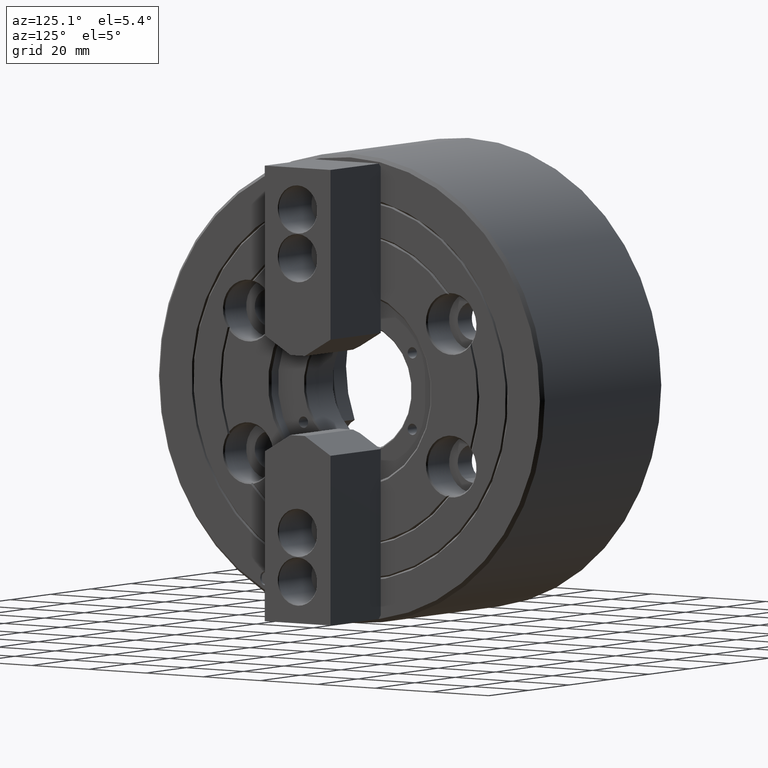
[diagram: clean part render]
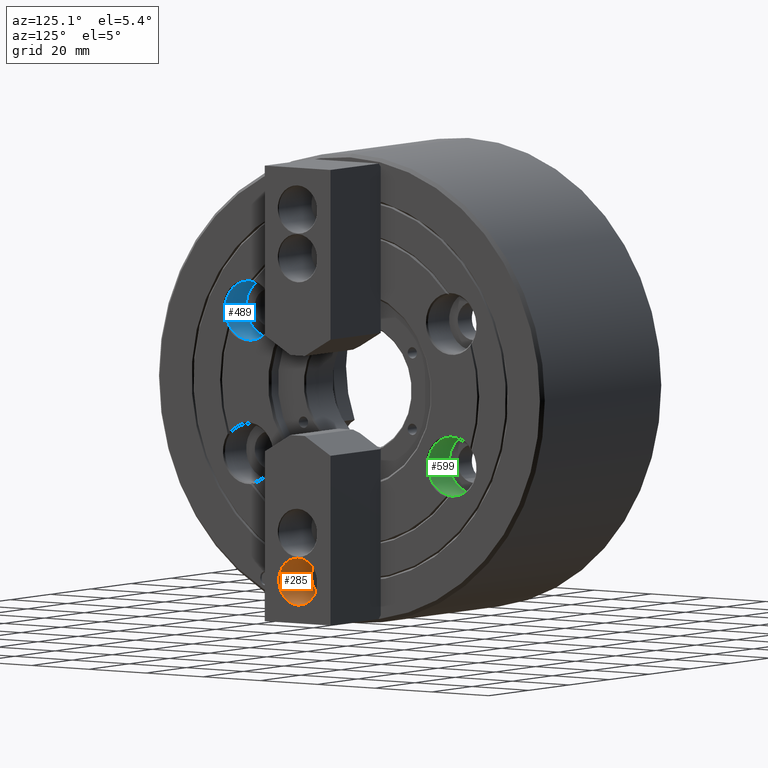
[diagram: same view with three faces highlighted in distinct colors, each labeled with its STEP entity id]
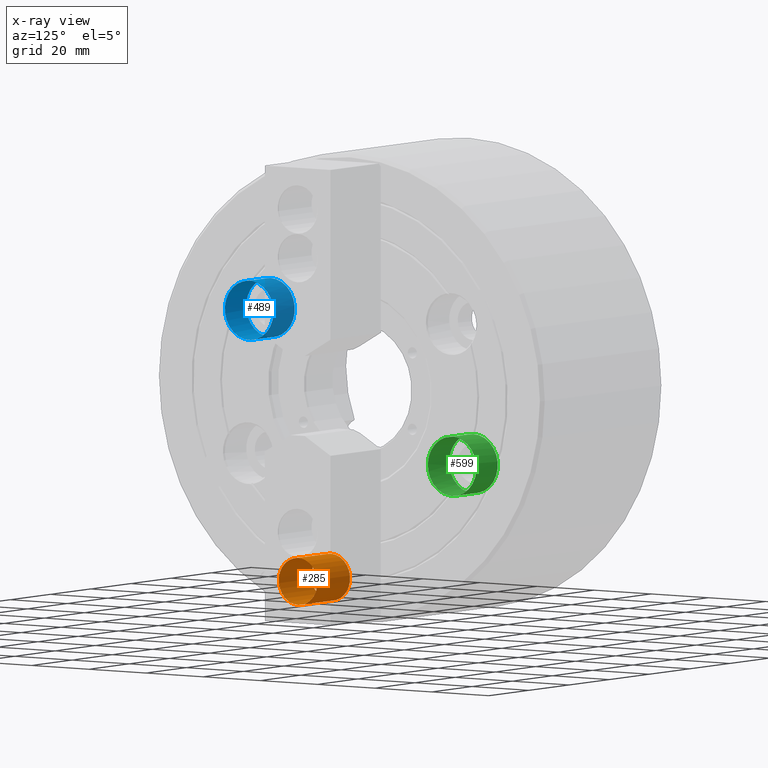
[diagram: x-ray of the same camera — body ghosted, the three highlighted faces saturated]
A machine part, auxiliary view with three faces highlighted in distinct colors.
The next image is the same camera in x-ray (body ghosted, the three faces saturated) — at least one of them is partly hidden behind the body in this view.
Their STEP definitions:

[orange] entity #285 — the highlighted cylindrical surface (bore or boss wall) has radius 6.75 mm, axis along (1, 0, 0).
#285 = ADVANCED_FACE( '', ( #735, #736 ), #737, .F. );
#735 = FACE_OUTER_BOUND( '', #1412, .T. );
#736 = FACE_OUTER_BOUND( '', #1413, .T. );
#737 = CYLINDRICAL_SURFACE( '', #1414, 6.75000000000000 );
#1412 = EDGE_LOOP( '', ( #2224 ) );
#1413 = EDGE_LOOP( '', ( #2225 ) );
#1414 = AXIS2_PLACEMENT_3D( '', #2226, #2227, #2228 );
#2224 = ORIENTED_EDGE( '', *, *, #4097, .T. );
#2225 = ORIENTED_EDGE( '', *, *, #4098, .F. );
#2226 = CARTESIAN_POINT( '', ( 56.0014536930733, -6.55164399294972E-015, -53.5000000000000 ) );
#2227 = DIRECTION( '', ( 1.00000000000000, 1.57214084700305E-048, 2.56758564431078E-032 ) );
#2228 = DIRECTION( '', ( -2.56758564431078E-032, 1.22460635382238E-016, 1.00000000000000 ) );
#4097 = EDGE_CURVE( '', #4807, #4807, #4808, .T. );
#4098 = EDGE_CURVE( '', #4809, #4809, #4810, .T. );
#4807 = VERTEX_POINT( '', #5913 );
#4808 = CIRCLE( '', #5914, 6.75000000000000 );
#4809 = VERTEX_POINT( '', #5915 );
#4810 = CIRCLE( '', #5916, 6.75000000000000 );
#5913 = CARTESIAN_POINT( '', ( 55.8014536930733, -5.72503470411962E-015, -46.7500000000000 ) );
#5914 = AXIS2_PLACEMENT_3D( '', #7763, #7764, #7765 );
#5915 = CARTESIAN_POINT( '', ( 39.5014536930733, -5.72503470411962E-015, -46.7500000000000 ) );
#5916 = AXIS2_PLACEMENT_3D( '', #7766, #7767, #7768 );
#7763 = CARTESIAN_POINT( '', ( 55.8014536930733, -6.55164399294972E-015, -53.5000000000000 ) );
#7764 = DIRECTION( '', ( 1.00000000000000, 1.57214084700305E-048, 2.56758564431078E-032 ) );
#7765 = DIRECTION( '', ( -2.56758564431078E-032, 1.22460635382238E-016, 1.00000000000000 ) );
#7766 = CARTESIAN_POINT( '', ( 39.5014536930733, -6.55164399294972E-015, -53.5000000000000 ) );
#7767 = DIRECTION( '', ( 1.00000000000000, 1.57214084700305E-048, 2.56758564431078E-032 ) );
#7768 = DIRECTION( '', ( -2.56758564431078E-032, 1.22460635382238E-016, 1.00000000000000 ) );

[blue] entity #489 — the highlighted cylindrical surface (bore or boss wall) has radius 8.5 mm, axis along (1, 0, 0).
#489 = ADVANCED_FACE( '', ( #1081, #1082 ), #1083, .F. );
#1081 = FACE_OUTER_BOUND( '', #1766, .T. );
#1082 = FACE_OUTER_BOUND( '', #1767, .T. );
#1083 = CYLINDRICAL_SURFACE( '', #1768, 8.50000000000000 );
#1766 = EDGE_LOOP( '', ( #3297, #3298 ) );
#1767 = EDGE_LOOP( '', ( #3299 ) );
#1768 = AXIS2_PLACEMENT_3D( '', #3300, #3301, #3302 );
#3297 = ORIENTED_EDGE( '', *, *, #4259, .T. );
#3298 = ORIENTED_EDGE( '', *, *, #4296, .T. );
#3299 = ORIENTED_EDGE( '', *, *, #4501, .F. );
#3300 = CARTESIAN_POINT( '', ( 30.0014536930733, -35.5070415551620, 20.5000000000000 ) );
#3301 = DIRECTION( '', ( 1.00000000000000, 5.38323120922244E-064, 1.28379282215539E-032 ) );
#3302 = DIRECTION( '', ( -1.28379282215539E-032, 1.22460635382238E-016, 1.00000000000000 ) );
#4259 = EDGE_CURVE( '', #5035, #5067, #5070, .T. );
#4296 = EDGE_CURVE( '', #5067, #5035, #5125, .T. );
#4501 = EDGE_CURVE( '', #5415, #5415, #5416, .T. );
#5035 = VERTEX_POINT( '', #6432 );
#5067 = VERTEX_POINT( '', #6548 );
#5070 = CIRCLE( '', #6554, 8.50000000000000 );
#5125 = CIRCLE( '', #6636, 8.50000000000000 );
#5415 = VERTEX_POINT( '', #7359 );
#5416 = CIRCLE( '', #7360, 8.50000000000000 );
#6432 = CARTESIAN_POINT( '', ( 29.6014536930733, -34.4634011576316, 28.9356869738417 ) );
#6548 = CARTESIAN_POINT( '', ( 29.6014536930733, -42.2907405741172, 15.3783374164022 ) );
#6554 = AXIS2_PLACEMENT_3D( '', #7888, #7889, #7890 );
#6636 = AXIS2_PLACEMENT_3D( '', #7922, #7923, #7924 );
#7359 = CARTESIAN_POINT( '', ( 19.0014536930733, -35.5070415551620, 29.0000000000000 ) );
#7360 = AXIS2_PLACEMENT_3D( '', #8075, #8076, #8077 );
#7888 = CARTESIAN_POINT( '', ( 29.6014536930733, -35.5070415551620, 20.5000000000000 ) );
#7889 = DIRECTION( '', ( 1.00000000000000, 1.57214084700305E-048, 2.56758564431078E-032 ) );
#7890 = DIRECTION( '', ( -2.56758564431078E-032, 1.22460635382238E-016, 1.00000000000000 ) );
#7922 = CARTESIAN_POINT( '', ( 29.6014536930733, -35.5070415551620, 20.5000000000000 ) );
#7923 = DIRECTION( '', ( 1.00000000000000, 1.57214084700305E-048, 2.56758564431078E-032 ) );
#7924 = DIRECTION( '', ( -2.56758564431078E-032, 1.22460635382238E-016, 1.00000000000000 ) );
#8075 = CARTESIAN_POINT( '', ( 19.0014536930733, -35.5070415551620, 20.5000000000000 ) );
#8076 = DIRECTION( '', ( 1.00000000000000, 5.38323120922244E-064, 1.28379282215539E-032 ) );
#8077 = DIRECTION( '', ( -1.28379282215539E-032, 1.22460635382238E-016, 1.00000000000000 ) );

[green] entity #599 — the highlighted cylindrical surface (bore or boss wall) has radius 8.5 mm, axis along (1, -0, 0).
#599 = ADVANCED_FACE( '', ( #1262, #1263 ), #1264, .F. );
#1262 = FACE_OUTER_BOUND( '', #1952, .T. );
#1263 = FACE_OUTER_BOUND( '', #1953, .T. );
#1264 = CYLINDRICAL_SURFACE( '', #1954, 8.50000000000000 );
#1952 = EDGE_LOOP( '', ( #3858, #3859 ) );
#1953 = EDGE_LOOP( '', ( #3860 ) );
#1954 = AXIS2_PLACEMENT_3D( '', #3861, #3862, #3863 );
#3858 = ORIENTED_EDGE( '', *, *, #4566, .T. );
#3859 = ORIENTED_EDGE( '', *, *, #4552, .T. );
#3860 = ORIENTED_EDGE( '', *, *, #4070, .F. );
#3861 = CARTESIAN_POINT( '', ( 30.0014536930733, 35.5070415551620, -20.5000000000000 ) );
#3862 = DIRECTION( '', ( 1.00000000000000, -0.000000000000000, 1.28379282215539E-032 ) );
#3863 = DIRECTION( '', ( 1.28379282215539E-032, 0.000000000000000, -1.00000000000000 ) );
#4070 = EDGE_CURVE( '', #4762, #4762, #4763, .T. );
#4552 = EDGE_CURVE( '', #4783, #5269, #5473, .T. );
#4566 = EDGE_CURVE( '', #5269, #4783, #5488, .T. );
#4762 = VERTEX_POINT( '', #5832 );
#4763 = CIRCLE( '', #5833, 8.50000000000000 );
#4783 = VERTEX_POINT( '', #5857 );
#5269 = VERTEX_POINT( '', #6972 );
#5473 = CIRCLE( '', #7478, 8.50000000000000 );
#5488 = CIRCLE( '', #7524, 8.50000000000000 );
#5832 = CARTESIAN_POINT( '', ( 19.0014536930733, 35.5070415551620, -29.0000000000000 ) );
#5833 = AXIS2_PLACEMENT_3D( '', #7734, #7735, #7736 );
#5857 = CARTESIAN_POINT( '', ( 29.6014536930733, 42.2907405741172, -15.3783374164022 ) );
#6972 = CARTESIAN_POINT( '', ( 29.6014536930733, 34.4634011576316, -28.9356869738417 ) );
#7478 = AXIS2_PLACEMENT_3D( '', #8105, #8106, #8107 );
#7524 = AXIS2_PLACEMENT_3D( '', #8112, #8113, #8114 );
#7734 = CARTESIAN_POINT( '', ( 19.0014536930733, 35.5070415551620, -20.5000000000000 ) );
#7735 = DIRECTION( '', ( 1.00000000000000, 0.000000000000000, 1.28379282215539E-032 ) );
#7736 = DIRECTION( '', ( 1.28379282215539E-032, 0.000000000000000, -1.00000000000000 ) );
#8105 = CARTESIAN_POINT( '', ( 29.6014536930733, 35.5070415551620, -20.5000000000000 ) );
#8106 = DIRECTION( '', ( 1.00000000000000, 0.000000000000000, 0.000000000000000 ) );
#8107 = DIRECTION( '', ( 0.000000000000000, 0.000000000000000, -1.00000000000000 ) );
#8112 = CARTESIAN_POINT( '', ( 29.6014536930733, 35.5070415551620, -20.5000000000000 ) );
#8113 = DIRECTION( '', ( 1.00000000000000, 0.000000000000000, 0.000000000000000 ) );
#8114 = DIRECTION( '', ( 0.000000000000000, 0.000000000000000, -1.00000000000000 ) );